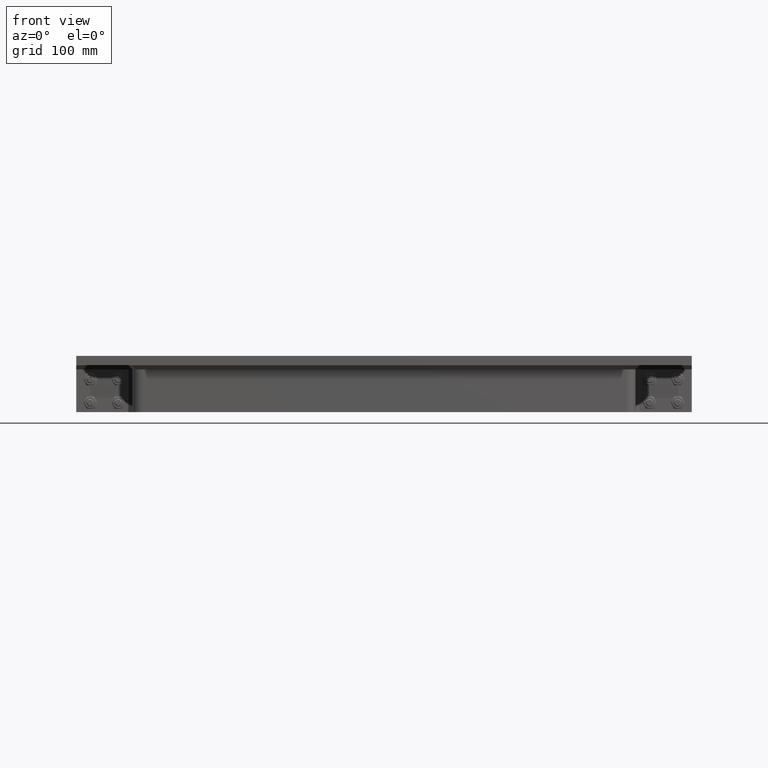
[diagram: clean part render]
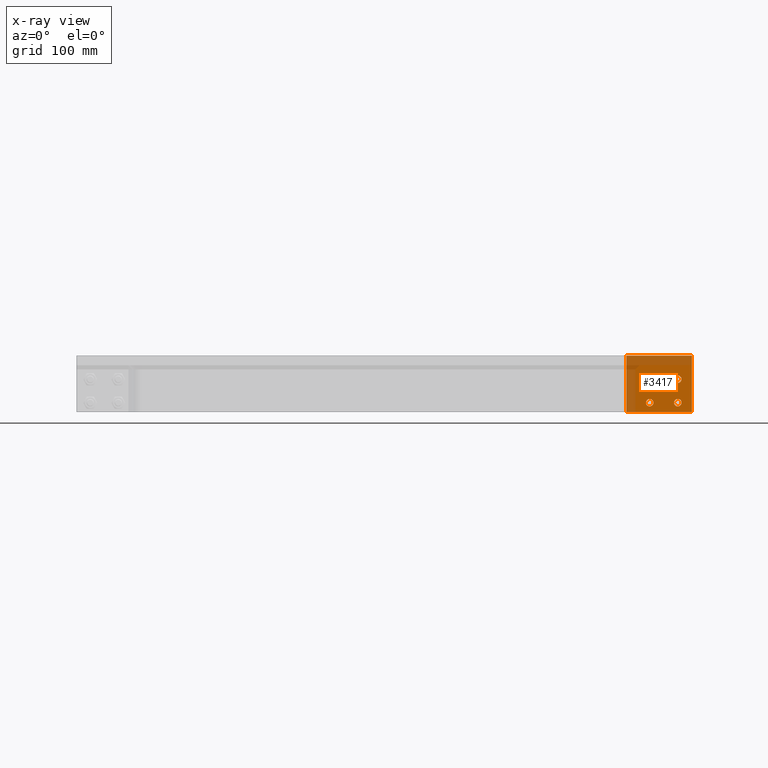
[diagram: x-ray — body ghosted, one internal face saturated and labeled with its STEP entity id]
A machine part, front view, then the same camera in x-ray: the body is ghosted and one INTERNAL B-rep face — a face not visible from any outside direction — is saturated and labeled: STEP entity #3417.
In plain terms, the highlighted planar face has unit normal (0, 1, -0).
Its self-contained STEP definition (entity closure, byte-faithful):
#363=FACE_BOUND('',#948,.T.);
#364=FACE_BOUND('',#949,.T.);
#365=FACE_BOUND('',#950,.T.);
#366=FACE_BOUND('',#951,.T.);
#490=CIRCLE('',#3910,4.);
#492=CIRCLE('',#3913,4.);
#494=CIRCLE('',#3916,4.);
#496=CIRCLE('',#3919,4.);
#676=FACE_OUTER_BOUND('',#947,.T.);
#947=EDGE_LOOP('',(#2887,#2888,#2889,#2890));
#948=EDGE_LOOP('',(#2891));
#949=EDGE_LOOP('',(#2892));
#950=EDGE_LOOP('',(#2893));
#951=EDGE_LOOP('',(#2894));
#1226=LINE('',#5680,#1487);
#1230=LINE('',#5688,#1491);
#1233=LINE('',#5694,#1494);
#1236=LINE('',#5699,#1497);
#1487=VECTOR('',#4690,10.);
#1491=VECTOR('',#4696,10.);
#1494=VECTOR('',#4701,10.);
#1497=VECTOR('',#4706,10.);
#1751=VERTEX_POINT('',#5656);
#1753=VERTEX_POINT('',#5662);
#1755=VERTEX_POINT('',#5668);
#1757=VERTEX_POINT('',#5674);
#1758=VERTEX_POINT('',#5678);
#1759=VERTEX_POINT('',#5679);
#1762=VERTEX_POINT('',#5687);
#1764=VERTEX_POINT('',#5693);
#2137=EDGE_CURVE('',#1751,#1751,#490,.T.);
#2140=EDGE_CURVE('',#1753,#1753,#492,.T.);
#2143=EDGE_CURVE('',#1755,#1755,#494,.T.);
#2146=EDGE_CURVE('',#1757,#1757,#496,.T.);
#2147=EDGE_CURVE('',#1758,#1759,#1226,.T.);
#2151=EDGE_CURVE('',#1759,#1762,#1230,.T.);
#2154=EDGE_CURVE('',#1762,#1764,#1233,.T.);
#2157=EDGE_CURVE('',#1764,#1758,#1236,.T.);
#2887=ORIENTED_EDGE('',*,*,#2157,.T.);
#2888=ORIENTED_EDGE('',*,*,#2147,.T.);
#2889=ORIENTED_EDGE('',*,*,#2151,.T.);
#2890=ORIENTED_EDGE('',*,*,#2154,.T.);
#2891=ORIENTED_EDGE('',*,*,#2137,.T.);
#2892=ORIENTED_EDGE('',*,*,#2140,.T.);
#2893=ORIENTED_EDGE('',*,*,#2143,.T.);
#2894=ORIENTED_EDGE('',*,*,#2146,.T.);
#3265=PLANE('',#3924);
#3417=ADVANCED_FACE('',(#676,#363,#364,#365,#366),#3265,.F.);
#3910=AXIS2_PLACEMENT_3D('',#5658,#4665,#4666);
#3913=AXIS2_PLACEMENT_3D('',#5664,#4672,#4673);
#3916=AXIS2_PLACEMENT_3D('',#5670,#4679,#4680);
#3919=AXIS2_PLACEMENT_3D('',#5676,#4686,#4687);
#3924=AXIS2_PLACEMENT_3D('',#5701,#4708,#4709);
#4665=DIRECTION('center_axis',(0.,0.,1.));
#4666=DIRECTION('ref_axis',(1.,0.,0.));
#4672=DIRECTION('center_axis',(0.,0.,1.));
#4673=DIRECTION('ref_axis',(1.,0.,0.));
#4679=DIRECTION('center_axis',(0.,0.,1.));
#4680=DIRECTION('ref_axis',(1.,0.,0.));
#4686=DIRECTION('center_axis',(0.,0.,1.));
#4687=DIRECTION('ref_axis',(1.,0.,0.));
#4690=DIRECTION('',(2.22044604925031E-16,-1.,0.));
#4696=DIRECTION('',(-1.,0.,0.));
#4701=DIRECTION('',(2.22044604925031E-16,1.,0.));
#4706=DIRECTION('',(1.,0.,0.));
#4708=DIRECTION('center_axis',(0.,0.,1.));
#4709=DIRECTION('ref_axis',(1.,0.,0.));
#5656=CARTESIAN_POINT('',(6.,-20.,0.));
#5658=CARTESIAN_POINT('Origin',(10.,-20.,0.));
#5662=CARTESIAN_POINT('',(-24.,5.00000000000001,0.));
#5664=CARTESIAN_POINT('Origin',(-20.,5.00000000000001,0.));
#5668=CARTESIAN_POINT('',(6.,5.00000000000001,0.));
#5670=CARTESIAN_POINT('Origin',(10.,5.00000000000001,0.));
#5674=CARTESIAN_POINT('',(-24.,-20.,0.));
#5676=CARTESIAN_POINT('Origin',(-20.,-20.,0.));
#5678=CARTESIAN_POINT('',(35.,30.,0.));
#5679=CARTESIAN_POINT('',(35.,-30.,0.));
#5680=CARTESIAN_POINT('',(35.,30.,0.));
#5687=CARTESIAN_POINT('',(-35.,-30.,0.));
#5688=CARTESIAN_POINT('',(35.,-30.,0.));
#5693=CARTESIAN_POINT('',(-35.,30.,0.));
#5694=CARTESIAN_POINT('',(-35.,-30.,0.));
#5699=CARTESIAN_POINT('',(-35.,30.,0.));
#5701=CARTESIAN_POINT('Origin',(0.,5.12410626750072E-15,0.));